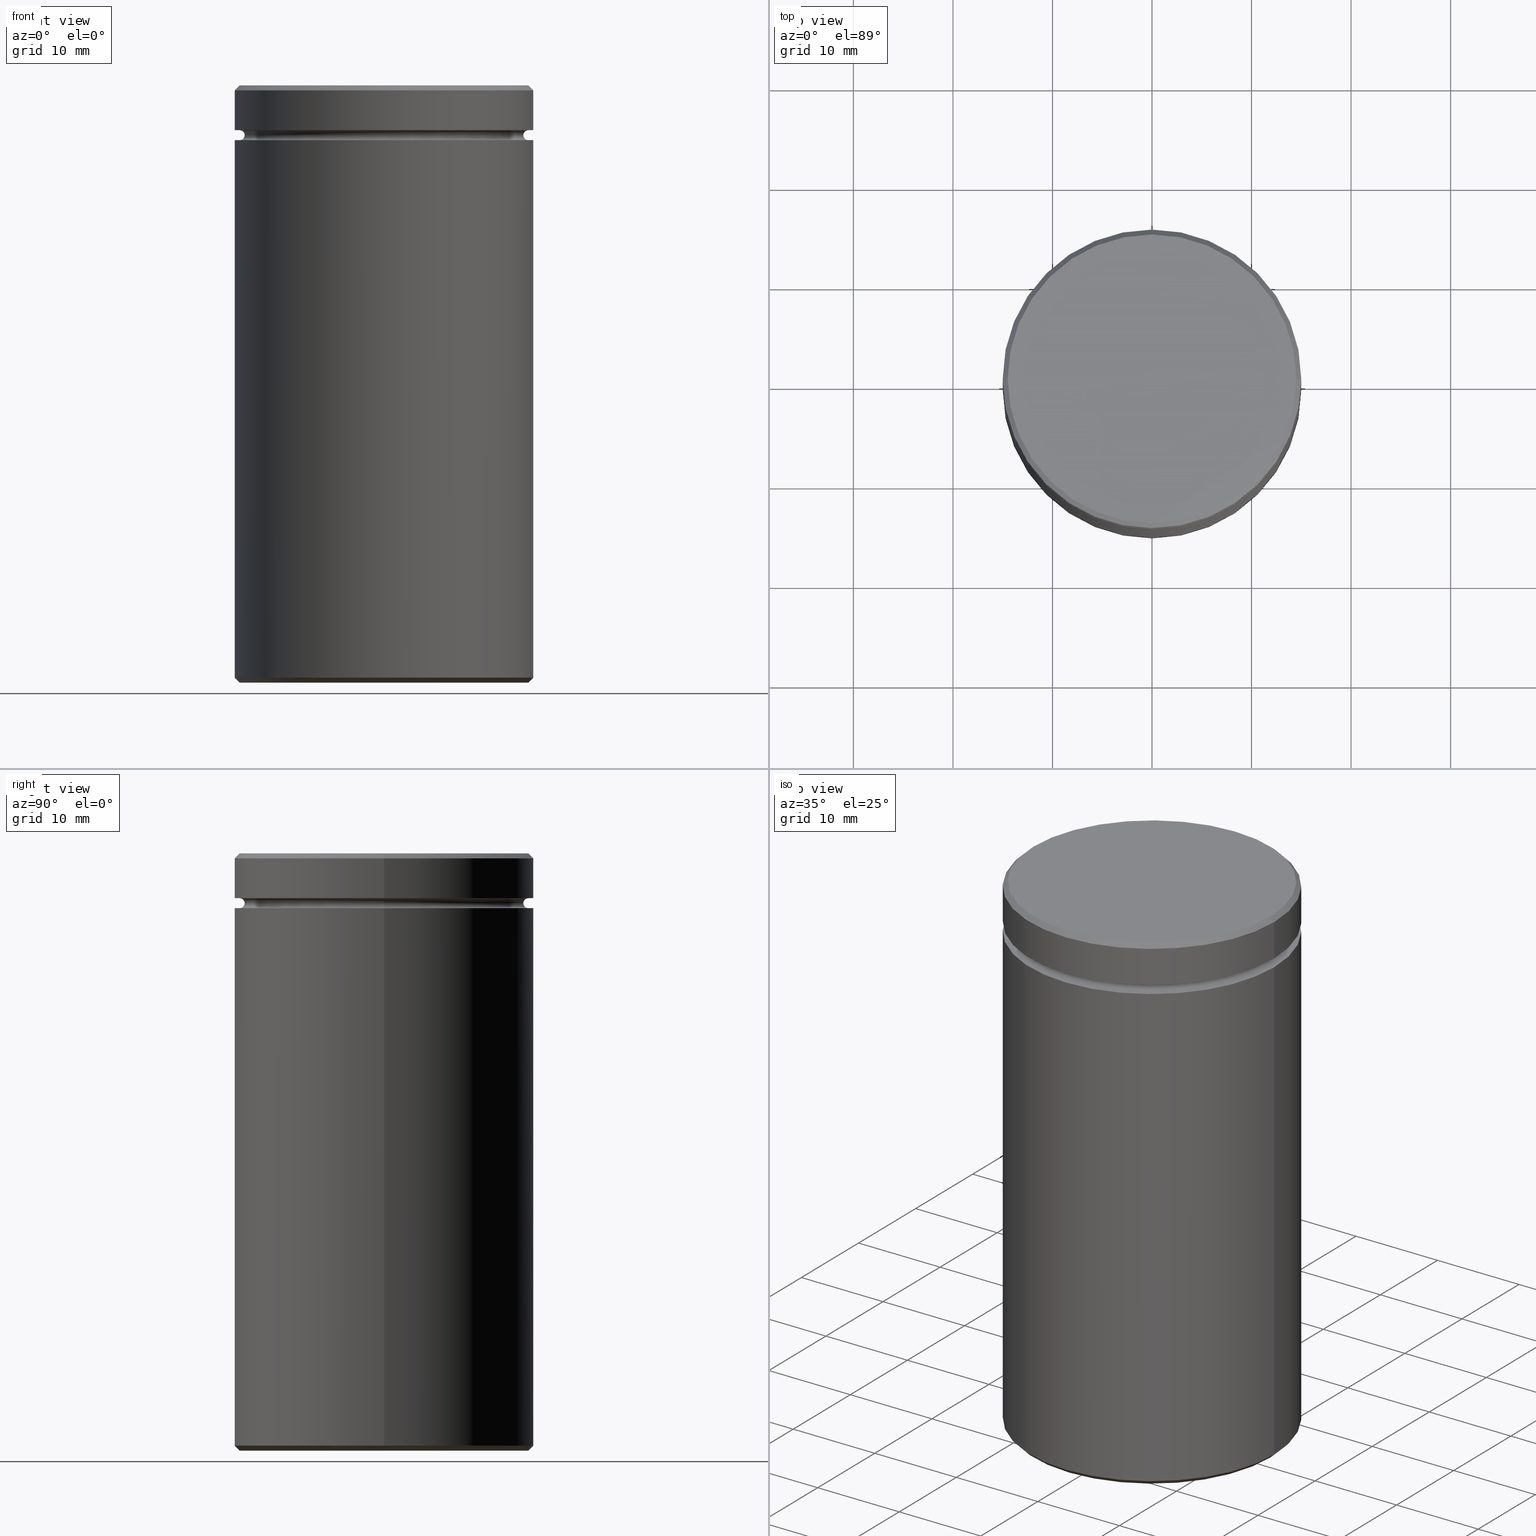
[diagram: canonical four-view strip — front | top / right | iso, engineering-drawing reading convention]
A machine part, canonical four-view strip (front | top / right | iso — engineering-drawing reading convention). The complete STEP part file that produces these views, byte-faithful:
ISO-10303-21;
HEADER;
FILE_DESCRIPTION (( 'STEP AP203' ),
    '1' );
FILE_NAME ('4a18.STEP',
    '2024-01-02T17:58:00',
    ( '' ),
    ( '' ),
    'SwSTEP 2.0',
    'SolidWorks 2019',
    '' );
FILE_SCHEMA (( 'CONFIG_CONTROL_DESIGN' ));
ENDSEC;

DATA;
#1 = DATE_AND_TIME ( #527, #15 ) ;
#2 = ORIENTED_EDGE ( 'NONE', *, *, #199, .F. ) ;
#3 = DESIGN_CONTEXT ( 'detailed design', #324, 'design' ) ;
#4 = EDGE_CURVE ( 'NONE', #536, #167, #161, .T. ) ;
#5 = ORIENTED_EDGE ( 'NONE', *, *, #19, .F. ) ;
#6 = AXIS2_PLACEMENT_3D ( 'NONE', #26, #552, #201 ) ;
#7 = CARTESIAN_POINT ( 'NONE',  ( 15.00000000000000000, 0.000000000000000000, -59.49999999999998579 ) ) ;
#8 = ORIENTED_EDGE ( 'NONE', *, *, #122, .T. ) ;
#9 = ORIENTED_EDGE ( 'NONE', *, *, #170, .F. ) ;
#10 = FACE_OUTER_BOUND ( 'NONE', #274, .T. ) ;
#11 = VERTEX_POINT ( 'NONE', #418 ) ;
#12 = CARTESIAN_POINT ( 'NONE',  ( 15.00000000000000000, 0.000000000000000000, 0.000000000000000000 ) ) ;
#13 = CARTESIAN_POINT ( 'NONE',  ( 0.000000000000000000, 0.000000000000000000, 0.000000000000000000 ) ) ;
#14 = AXIS2_PLACEMENT_3D ( 'NONE', #543, #320, #411 ) ;
#15 = LOCAL_TIME ( 18, 58, 0.000000000000000000, #471 ) ;
#16 = DIRECTION ( 'NONE',  ( -1.000000000000000000, 0.000000000000000000, 0.000000000000000000 ) ) ;
#17 = VERTEX_POINT ( 'NONE', #424 ) ;
#18 = CYLINDRICAL_SURFACE ( 'NONE', #407, 10.00000000000000000 ) ;
#19 = EDGE_CURVE ( 'NONE', #73, #292, #288, .T. ) ;
#20 = DIRECTION ( 'NONE',  ( -0.000000000000000000, -0.000000000000000000, 1.000000000000000000 ) ) ;
#21 = DIRECTION ( 'NONE',  ( -0.000000000000000000, -0.000000000000000000, 1.000000000000000000 ) ) ;
#22 = VECTOR ( 'NONE', #530, 1000.000000000000000 ) ;
#23 = AXIS2_PLACEMENT_3D ( 'NONE', #184, #266, #477 ) ;
#24 = ORGANIZATION ( 'NEUR�EN�', 'NEUR�EN�', '' ) ;
#25 = LINE ( 'NONE', #412, #228 ) ;
#26 = CARTESIAN_POINT ( 'NONE',  ( 0.000000000000000000, 0.000000000000000000, -4.999999999999999112 ) ) ;
#27 = EDGE_CURVE ( 'NONE', #469, #377, #358, .T. ) ;
#28 = CARTESIAN_POINT ( 'NONE',  ( 0.000000000000000000, 0.000000000000000000, -5.500000000000000000 ) ) ;
#29 = DIRECTION ( 'NONE',  ( -0.000000000000000000, -0.000000000000000000, -1.000000000000000000 ) ) ;
#30 = DIRECTION ( 'NONE',  ( 0.000000000000000000, 0.000000000000000000, -1.000000000000000000 ) ) ;
#31 = CIRCLE ( 'NONE', #77, 0.5000000000000004441 ) ;
#32 = ADVANCED_BREP_SHAPE_REPRESENTATION ( '4a18', ( #446, #397 ), #435 ) ;
#33 = CIRCLE ( 'NONE', #134, 10.00000000000000000 ) ;
#34 = CARTESIAN_POINT ( 'NONE',  ( 0.000000000000000000, 0.000000000000000000, -4.999999999999999112 ) ) ;
#35 = CARTESIAN_POINT ( 'NONE',  ( 0.000000000000000000, 0.000000000000000000, 0.000000000000000000 ) ) ;
#36 = PRODUCT_DEFINITION ( 'NEZN�M�', '', #387, #3 ) ;
#37 = PERSON_AND_ORGANIZATION_ROLE ( 'classification_officer' ) ;
#38 = CARTESIAN_POINT ( 'NONE',  ( -15.00000000000000000, 1.836970198721029589E-15, -0.5000000000000038858 ) ) ;
#39 = ORIENTED_EDGE ( 'NONE', *, *, #532, .T. ) ;
#40 = CARTESIAN_POINT ( 'NONE',  ( 15.00000000000000000, 0.000000000000000000, 0.000000000000000000 ) ) ;
#41 = ORIENTED_EDGE ( 'NONE', *, *, #399, .T. ) ;
#42 = AXIS2_PLACEMENT_3D ( 'NONE', #28, #559, #553 ) ;
#43 = CARTESIAN_POINT ( 'NONE',  ( -15.00000000000000000, 1.836970198721029589E-15, -59.49999999999998579 ) ) ;
#44 = APPROVAL_DATE_TIME ( #1, #185 ) ;
#45 = VERTEX_POINT ( 'NONE', #156 ) ;
#46 = CYLINDRICAL_SURFACE ( 'NONE', #340, 10.00000000000000000 ) ;
#47 = EDGE_CURVE ( 'NONE', #557, #253, #112, .T. ) ;
#48 = PERSON_AND_ORGANIZATION ( #380, #24 ) ;
#49 = DIRECTION ( 'NONE',  ( -0.000000000000000000, -0.000000000000000000, 1.000000000000000000 ) ) ;
#50 = APPROVAL ( #474, 'NEUR�EN�' ) ;
#51 = EDGE_LOOP ( 'NONE', ( #393, #8, #197, #2 ) ) ;
#52 = ORIENTED_EDGE ( 'NONE', *, *, #467, .F. ) ;
#53 = AXIS2_PLACEMENT_3D ( 'NONE', #235, #237, #410 ) ;
#54 = ADVANCED_FACE ( 'NONE', ( #251 ), #238, .T. ) ;
#55 = CARTESIAN_POINT ( 'NONE',  ( 14.50000000000000355, 1.806354028742346196E-15, 0.000000000000000000 ) ) ;
#56 = EDGE_LOOP ( 'NONE', ( #234, #314, #92, #236 ) ) ;
#57 = DIRECTION ( 'NONE',  ( -1.000000000000000000, 0.000000000000000000, 0.000000000000000000 ) ) ;
#58 = VERTEX_POINT ( 'NONE', #419 ) ;
#59 = EDGE_LOOP ( 'NONE', ( #224, #498 ) ) ;
#60 = CARTESIAN_POINT ( 'NONE',  ( 0.000000000000000000, 0.000000000000000000, -60.00000000000000000 ) ) ;
#61 = CIRCLE ( 'NONE', #518, 0.5000000000000004441 ) ;
#62 = DIRECTION ( 'NONE',  ( -1.000000000000000000, 0.000000000000000000, 0.000000000000000000 ) ) ;
#63 = ADVANCED_FACE ( 'NONE', ( #72 ), #114, .T. ) ;
#64 = DIRECTION ( 'NONE',  ( 1.000000000000000000, 0.000000000000000000, 0.000000000000000000 ) ) ;
#65 = VERTEX_POINT ( 'NONE', #517 ) ;
#66 = ORIENTED_EDGE ( 'NONE', *, *, #416, .F. ) ;
#67 = APPLICATION_PROTOCOL_DEFINITION ( 'international standard', 'config_control_design', 1994, #324 ) ;
#68 = CARTESIAN_POINT ( 'NONE',  ( 0.000000000000000000, 0.000000000000000000, -60.00000000000000000 ) ) ;
#69 = AXIS2_PLACEMENT_3D ( 'NONE', #104, #318, #356 ) ;
#70 = APPROVAL ( #457, 'NEUR�EN�' ) ;
#71 = APPROVAL_DATE_TIME ( #507, #70 ) ;
#72 = FACE_OUTER_BOUND ( 'NONE', #51, .T. ) ;
#73 = VERTEX_POINT ( 'NONE', #204 ) ;
#74 = DIRECTION ( 'NONE',  ( -0.000000000000000000, -0.000000000000000000, 1.000000000000000000 ) ) ;
#75 = DIRECTION ( 'NONE',  ( -1.000000000000000000, 0.000000000000000000, 0.000000000000000000 ) ) ;
#76 = ADVANCED_FACE ( 'NONE', ( #254 ), #458, .T. ) ;
#77 = AXIS2_PLACEMENT_3D ( 'NONE', #551, #329, #472 ) ;
#78 = VECTOR ( 'NONE', #216, 1000.000000000000000 ) ;
#79 = EDGE_LOOP ( 'NONE', ( #278, #506 ) ) ;
#80 = DATE_AND_TIME ( #567, #520 ) ;
#81 = FACE_OUTER_BOUND ( 'NONE', #56, .T. ) ;
#82 = ORIENTED_EDGE ( 'NONE', *, *, #276, .F. ) ;
#83 = DATE_AND_TIME ( #126, #325 ) ;
#84 = DIRECTION ( 'NONE',  ( 0.000000000000000000, 0.000000000000000000, -1.000000000000000000 ) ) ;
#85 = FACE_OUTER_BOUND ( 'NONE', #98, .T. ) ;
#86 = AXIS2_PLACEMENT_3D ( 'NONE', #516, #74, #171 ) ;
#87 = EDGE_CURVE ( 'NONE', #226, #557, #31, .T. ) ;
#88 = DIRECTION ( 'NONE',  ( -0.000000000000000000, -0.000000000000000000, 1.000000000000000000 ) ) ;
#89 = COORDINATED_UNIVERSAL_TIME_OFFSET ( 1, 0, .AHEAD. ) ;
#90 = VERTEX_POINT ( 'NONE', #373 ) ;
#91 = FACE_OUTER_BOUND ( 'NONE', #539, .T. ) ;
#92 = ORIENTED_EDGE ( 'NONE', *, *, #212, .T. ) ;
#93 = DIRECTION ( 'NONE',  ( 1.000000000000000000, 0.000000000000000000, 0.000000000000000000 ) ) ;
#94 = ORIENTED_EDGE ( 'NONE', *, *, #195, .F. ) ;
#95 = ADVANCED_FACE ( 'NONE', ( #376 ), #381, .T. ) ;
#96 = CIRCLE ( 'NONE', #413, 10.00000000000000000 ) ;
#97 = ORIENTED_EDGE ( 'NONE', *, *, #547, .T. ) ;
#98 = EDGE_LOOP ( 'NONE', ( #366, #425, #5, #52 ) ) ;
#99 = VECTOR ( 'NONE', #29, 1000.000000000000000 ) ;
#100 = CARTESIAN_POINT ( 'NONE',  ( 15.00000000000000000, 0.000000000000000000, -4.500000000000000888 ) ) ;
#101 = DIRECTION ( 'NONE',  ( 1.000000000000000000, 0.000000000000000000, 0.000000000000000000 ) ) ;
#102 = UNCERTAINTY_MEASURE_WITH_UNIT (LENGTH_MEASURE( 1.000000000000000082E-05 ), #154, 'distance_accuracy_value', 'NONE');
#103 = ORIENTED_EDGE ( 'NONE', *, *, #541, .F. ) ;
#104 = CARTESIAN_POINT ( 'NONE',  ( -14.49999999999999822, 1.775737858763662015E-15, -4.999999999999999112 ) ) ;
#105 = LINE ( 'NONE', #198, #151 ) ;
#106 = EDGE_CURVE ( 'NONE', #349, #58, #220, .T. ) ;
#107 = AXIS2_PLACEMENT_3D ( 'NONE', #499, #150, #488 ) ;
#108 = DIRECTION ( 'NONE',  ( 1.000000000000000000, 0.000000000000000000, 0.000000000000000000 ) ) ;
#109 = DIRECTION ( 'NONE',  ( 1.000000000000000000, 0.000000000000000000, 0.000000000000000000 ) ) ;
#110 = EDGE_CURVE ( 'NONE', #388, #226, #564, .T. ) ;
#111 = DIRECTION ( 'NONE',  ( 1.000000000000000000, 0.000000000000000000, 0.000000000000000000 ) ) ;
#112 = CIRCLE ( 'NONE', #192, 14.49999999999999822 ) ;
#113 = VECTOR ( 'NONE', #257, 1000.000000000000000 ) ;
#114 = CYLINDRICAL_SURFACE ( 'NONE', #509, 15.00000000000000000 ) ;
#115 = CC_DESIGN_PERSON_AND_ORGANIZATION_ASSIGNMENT ( #348, #223, ( #387 ) ) ;
#116 = LINE ( 'NONE', #332, #99 ) ;
#117 = CARTESIAN_POINT ( 'NONE',  ( -15.00000000000000000, 1.836970198721029589E-15, 0.000000000000000000 ) ) ;
#118 = DIRECTION ( 'NONE',  ( -0.000000000000000000, -0.000000000000000000, 1.000000000000000000 ) ) ;
#119 = DIRECTION ( 'NONE',  ( -0.000000000000000000, -0.000000000000000000, 1.000000000000000000 ) ) ;
#120 = ORIENTED_EDGE ( 'NONE', *, *, #87, .F. ) ;
#121 = ORIENTED_EDGE ( 'NONE', *, *, #170, .T. ) ;
#122 = EDGE_CURVE ( 'NONE', #45, #439, #490, .T. ) ;
#123 = DIRECTION ( 'NONE',  ( 1.000000000000000000, 0.000000000000000000, 0.000000000000000000 ) ) ;
#124 = CIRCLE ( 'NONE', #510, 15.00000000000000000 ) ;
#125 = CARTESIAN_POINT ( 'NONE',  ( -14.49999999999999822, 1.775737858763662015E-15, -5.500000000000000000 ) ) ;
#126 = CALENDAR_DATE ( 2024, 2, 1 ) ;
#127 = FACE_BOUND ( 'NONE', #183, .T. ) ;
#128 = ORIENTED_EDGE ( 'NONE', *, *, #372, .T. ) ;
#129 = ADVANCED_FACE ( 'NONE', ( #250 ), #302, .T. ) ;
#130 = PERSON_AND_ORGANIZATION_ROLE ( 'creator' ) ;
#131 = ORIENTED_EDGE ( 'NONE', *, *, #562, .F. ) ;
#132 = CARTESIAN_POINT ( 'NONE',  ( -15.00000000000000000, 1.836970198721029589E-15, -5.500000000000000000 ) ) ;
#133 = ORIENTED_EDGE ( 'NONE', *, *, #515, .T. ) ;
#134 = AXIS2_PLACEMENT_3D ( 'NONE', #60, #442, #321 ) ;
#135 = DIRECTION ( 'NONE',  ( -1.000000000000000000, -1.224646799147353454E-16, 0.000000000000000000 ) ) ;
#136 = EDGE_LOOP ( 'NONE', ( #369, #128, #546, #120 ) ) ;
#137 = CARTESIAN_POINT ( 'NONE',  ( 0.000000000000000000, 15.00000000000000000, -60.00000000000000000 ) ) ;
#138 = EDGE_CURVE ( 'NONE', #167, #544, #341, .T. ) ;
#139 = ORIENTED_EDGE ( 'NONE', *, *, #556, .F. ) ;
#140 = DIRECTION ( 'NONE',  ( 0.000000000000000000, 0.000000000000000000, -1.000000000000000000 ) ) ;
#141 = AXIS2_PLACEMENT_3D ( 'NONE', #365, #493, #101 ) ;
#142 = DIRECTION ( 'NONE',  ( -0.000000000000000000, -0.000000000000000000, -1.000000000000000000 ) ) ;
#143 = ORIENTED_EDGE ( 'NONE', *, *, #416, .T. ) ;
#144 = EDGE_LOOP ( 'NONE', ( #398, #206, #568, #270 ) ) ;
#145 = CARTESIAN_POINT ( 'NONE',  ( 0.000000000000000000, 0.000000000000000000, -4.500000000000000888 ) ) ;
#146 = EDGE_CURVE ( 'NONE', #45, #292, #25, .T. ) ;
#147 = ORIENTED_EDGE ( 'NONE', *, *, #532, .F. ) ;
#148 = CARTESIAN_POINT ( 'NONE',  ( 0.000000000000000000, 0.000000000000000000, -60.00000000000000000 ) ) ;
#149 = PRODUCT_RELATED_PRODUCT_CATEGORY ( 'detail', '', ( #299 ) ) ;
#150 = DIRECTION ( 'NONE',  ( 0.000000000000000000, 0.000000000000000000, -1.000000000000000000 ) ) ;
#151 = VECTOR ( 'NONE', #535, 1000.000000000000000 ) ;
#152 = LOCAL_TIME ( 18, 58, 0.000000000000000000, #371 ) ;
#153 = ORIENTED_EDGE ( 'NONE', *, *, #199, .T. ) ;
#154 =( LENGTH_UNIT ( ) NAMED_UNIT ( * ) SI_UNIT ( .MILLI., .METRE. ) );
#155 = ADVANCED_FACE ( 'NONE', ( #207 ), #465, .T. ) ;
#156 = CARTESIAN_POINT ( 'NONE',  ( -15.00000000000000000, 1.836970198721029589E-15, -59.49999999999998579 ) ) ;
#157 = VERTEX_POINT ( 'NONE', #327 ) ;
#158 = DIRECTION ( 'NONE',  ( 0.7071067811865414665, 8.659560562354858902E-17, -0.7071067811865536790 ) ) ;
#159 = DIRECTION ( 'NONE',  ( 0.000000000000000000, 0.000000000000000000, -1.000000000000000000 ) ) ;
#160 = DIRECTION ( 'NONE',  ( -0.000000000000000000, -0.000000000000000000, 1.000000000000000000 ) ) ;
#161 = LINE ( 'NONE', #117, #459 ) ;
#162 = ORIENTED_EDGE ( 'NONE', *, *, #562, .T. ) ;
#163 = AXIS2_PLACEMENT_3D ( 'NONE', #68, #30, #75 ) ;
#164 = DIRECTION ( 'NONE',  ( 1.000000000000000000, 0.000000000000000000, 0.000000000000000000 ) ) ;
#165 = VECTOR ( 'NONE', #191, 1000.000000000000000 ) ;
#166 = DIRECTION ( 'NONE',  ( -0.000000000000000000, -0.000000000000000000, 1.000000000000000000 ) ) ;
#167 = VERTEX_POINT ( 'NONE', #38 ) ;
#168 = CARTESIAN_POINT ( 'NONE',  ( 0.000000000000000000, 0.000000000000000000, -4.999999999999999112 ) ) ;
#169 = EDGE_LOOP ( 'NONE', ( #374, #545, #343, #186 ) ) ;
#170 = EDGE_CURVE ( 'NONE', #157, #45, #175, .T. ) ;
#171 = DIRECTION ( 'NONE',  ( 1.000000000000000000, 0.000000000000000000, 0.000000000000000000 ) ) ;
#172 = PERSON_AND_ORGANIZATION ( #380, #24 ) ;
#173 = CC_DESIGN_PERSON_AND_ORGANIZATION_ASSIGNMENT ( #339, #37, ( #485 ) ) ;
#174 = ORIENTED_EDGE ( 'NONE', *, *, #326, .F. ) ;
#175 = LINE ( 'NONE', #43, #22 ) ;
#176 = EDGE_LOOP ( 'NONE', ( #489, #153 ) ) ;
#177 = AXIS2_PLACEMENT_3D ( 'NONE', #34, #249, #111 ) ;
#178 = CC_DESIGN_APPROVAL ( #50, ( #485 ) ) ;
#179 = APPROVAL_PERSON_ORGANIZATION ( #256, #50, #215 ) ;
#180 = DIRECTION ( 'NONE',  ( -1.000000000000000000, 0.000000000000000000, -0.000000000000000000 ) ) ;
#181 = ADVANCED_FACE ( 'NONE', ( #81 ), #46, .F. ) ;
#182 = COORDINATED_UNIVERSAL_TIME_OFFSET ( 1, 0, .AHEAD. ) ;
#183 = EDGE_LOOP ( 'NONE', ( #494, #258 ) ) ;
#184 = CARTESIAN_POINT ( 'NONE',  ( 0.000000000000000000, 0.000000000000000000, -5.500000000000000000 ) ) ;
#185 = APPROVAL ( #523, 'NEUR�EN�' ) ;
#186 = ORIENTED_EDGE ( 'NONE', *, *, #522, .F. ) ;
#187 = CARTESIAN_POINT ( 'NONE',  ( 0.000000000000000000, 0.000000000000000000, -60.00000000000000000 ) ) ;
#188 = TOROIDAL_SURFACE ( 'NONE', #177, 14.49999999999999822, 0.5000000000000000000 ) ;
#189 = FACE_OUTER_BOUND ( 'NONE', #59, .T. ) ;
#190 = CARTESIAN_POINT ( 'NONE',  ( -10.00000000000000000, 0.000000000000000000, -60.00000000000000000 ) ) ;
#191 = DIRECTION ( 'NONE',  ( -0.000000000000000000, -0.000000000000000000, 1.000000000000000000 ) ) ;
#192 = AXIS2_PLACEMENT_3D ( 'NONE', #383, #303, #508 ) ;
#193 = CONICAL_SURFACE ( 'NONE', #310, 15.00000000000000000, 0.7853981633974361776 ) ;
#194 = DIRECTION ( 'NONE',  ( 0.000000000000000000, 0.000000000000000000, -1.000000000000000000 ) ) ;
#195 = EDGE_CURVE ( 'NONE', #11, #441, #96, .T. ) ;
#196 = PLANE ( 'NONE',  #433 ) ;
#197 = ORIENTED_EDGE ( 'NONE', *, *, #467, .T. ) ;
#198 = CARTESIAN_POINT ( 'NONE',  ( -14.50000000000000355, 0.000000000000000000, 0.000000000000000000 ) ) ;
#199 = EDGE_CURVE ( 'NONE', #292, #73, #316, .T. ) ;
#200 = AXIS2_PLACEMENT_3D ( 'NONE', #333, #159, #203 ) ;
#201 = DIRECTION ( 'NONE',  ( 1.000000000000000000, 0.000000000000000000, 0.000000000000000000 ) ) ;
#202 = AXIS2_PLACEMENT_3D ( 'NONE', #307, #344, #346 ) ;
#203 = DIRECTION ( 'NONE',  ( -1.000000000000000000, 0.000000000000000000, -0.000000000000000000 ) ) ;
#204 = CARTESIAN_POINT ( 'NONE',  ( 15.00000000000000000, 0.000000000000000000, -5.500000000000000000 ) ) ;
#205 = DIRECTION ( 'NONE',  ( -1.000000000000000000, 0.000000000000000000, 0.000000000000000000 ) ) ;
#206 = ORIENTED_EDGE ( 'NONE', *, *, #515, .F. ) ;
#207 = FACE_OUTER_BOUND ( 'NONE', #402, .T. ) ;
#208 = AXIS2_PLACEMENT_3D ( 'NONE', #35, #561, #370 ) ;
#209 = CARTESIAN_POINT ( 'NONE',  ( 0.000000000000000000, 0.000000000000000000, 0.000000000000000000 ) ) ;
#210 = TOROIDAL_SURFACE ( 'NONE', #230, 14.49999999999999822, 0.5000000000000000000 ) ;
#211 = CC_DESIGN_APPROVAL ( #185, ( #387 ) ) ;
#212 = EDGE_CURVE ( 'NONE', #441, #349, #521, .T. ) ;
#213 = CARTESIAN_POINT ( 'NONE',  ( -15.00000000000000000, 1.836970198721029589E-15, -4.500000000000000888 ) ) ;
#214 = DIRECTION ( 'NONE',  ( 1.000000000000000000, 0.000000000000000000, 0.000000000000000000 ) ) ;
#215 = APPROVAL_ROLE ( '' ) ;
#216 = DIRECTION ( 'NONE',  ( 0.7071067811865389130, 0.000000000000000000, 0.7071067811865561215 ) ) ;
#217 = ORIENTED_EDGE ( 'NONE', *, *, #522, .T. ) ;
#218 = EDGE_CURVE ( 'NONE', #226, #17, #61, .T. ) ;
#219 = FACE_OUTER_BOUND ( 'NONE', #176, .T. ) ;
#220 = CIRCLE ( 'NONE', #163, 10.00000000000000000 ) ;
#221 = TOROIDAL_SURFACE ( 'NONE', #107, 14.49999999999999822, 0.5000000000000000000 ) ;
#222 = DIRECTION ( 'NONE',  ( -0.000000000000000000, -0.000000000000000000, -1.000000000000000000 ) ) ;
#223 = PERSON_AND_ORGANIZATION_ROLE ( 'creator' ) ;
#224 = ORIENTED_EDGE ( 'NONE', *, *, #326, .T. ) ;
#225 = DIRECTION ( 'NONE',  ( 0.000000000000000000, 0.000000000000000000, -1.000000000000000000 ) ) ;
#226 = VERTEX_POINT ( 'NONE', #384 ) ;
#227 = DIRECTION ( 'NONE',  ( 1.000000000000000000, 0.000000000000000000, 0.000000000000000000 ) ) ;
#228 = VECTOR ( 'NONE', #21, 1000.000000000000000 ) ;
#229 = EDGE_CURVE ( 'NONE', #90, #439, #389, .T. ) ;
#230 = AXIS2_PLACEMENT_3D ( 'NONE', #313, #353, #445 ) ;
#231 = ORIENTED_EDGE ( 'NONE', *, *, #195, .T. ) ;
#232 = CARTESIAN_POINT ( 'NONE',  ( 0.000000000000000000, 15.00000000000000000, -4.500000000000000888 ) ) ;
#233 = ORIENTED_EDGE ( 'NONE', *, *, #27, .F. ) ;
#234 = ORIENTED_EDGE ( 'NONE', *, *, #547, .F. ) ;
#235 = CARTESIAN_POINT ( 'NONE',  ( 0.000000000000000000, 0.000000000000000000, -59.49999999999998579 ) ) ;
#236 = ORIENTED_EDGE ( 'NONE', *, *, #106, .T. ) ;
#237 = DIRECTION ( 'NONE',  ( -0.000000000000000000, -0.000000000000000000, 1.000000000000000000 ) ) ;
#238 = CONICAL_SURFACE ( 'NONE', #263, 14.50000000000000355, 0.7853981633974396193 ) ;
#239 = AXIS2_PLACEMENT_3D ( 'NONE', #554, #160, #64 ) ;
#240 = CARTESIAN_POINT ( 'NONE',  ( 15.00000000000000000, 0.000000000000000000, -59.49999999999998579 ) ) ;
#241 = EDGE_LOOP ( 'NONE', ( #41, #280 ) ) ;
#242 = FACE_OUTER_BOUND ( 'NONE', #405, .T. ) ;
#243 = ADVANCED_FACE ( 'NONE', ( #189, #127 ), #312, .T. ) ;
#244 = PERSON_AND_ORGANIZATION ( #380, #24 ) ;
#245 = DIRECTION ( 'NONE',  ( -0.000000000000000000, -0.000000000000000000, 1.000000000000000000 ) ) ;
#246 = AXIS2_PLACEMENT_3D ( 'NONE', #491, #275, #16 ) ;
#247 = CARTESIAN_POINT ( 'NONE',  ( 0.000000000000000000, 0.000000000000000000, -59.49999999999998579 ) ) ;
#248 = ORIENTED_EDGE ( 'NONE', *, *, #138, .F. ) ;
#249 = DIRECTION ( 'NONE',  ( -0.000000000000000000, -0.000000000000000000, 1.000000000000000000 ) ) ;
#250 = FACE_OUTER_BOUND ( 'NONE', #503, .T. ) ;
#251 = FACE_OUTER_BOUND ( 'NONE', #404, .T. ) ;
#252 = CARTESIAN_POINT ( 'NONE',  ( 0.000000000000000000, 0.000000000000000000, -4.500000000000000888 ) ) ;
#253 = VERTEX_POINT ( 'NONE', #125 ) ;
#254 = FACE_OUTER_BOUND ( 'NONE', #444, .T. ) ;
#255 = AXIS2_PLACEMENT_3D ( 'NONE', #13, #194, #205 ) ;
#256 = PERSON_AND_ORGANIZATION ( #380, #24 ) ;
#257 = DIRECTION ( 'NONE',  ( -0.000000000000000000, -0.000000000000000000, -1.000000000000000000 ) ) ;
#258 = ORIENTED_EDGE ( 'NONE', *, *, #432, .F. ) ;
#259 = EDGE_CURVE ( 'NONE', #253, #557, #273, .T. ) ;
#260 = SHAPE_DEFINITION_REPRESENTATION ( #483, #32 ) ;
#261 = CARTESIAN_POINT ( 'NONE',  ( 0.000000000000000000, 0.000000000000000000, -4.999999999999999112 ) ) ;
#262 = CARTESIAN_POINT ( 'NONE',  ( 0.000000000000000000, 0.000000000000000000, 0.000000000000000000 ) ) ;
#263 = AXIS2_PLACEMENT_3D ( 'NONE', #420, #338, #505 ) ;
#264 = CIRCLE ( 'NONE', #396, 14.49999999999999645 ) ;
#265 = CALENDAR_DATE ( 2024, 2, 1 ) ;
#266 = DIRECTION ( 'NONE',  ( 0.000000000000000000, 0.000000000000000000, -1.000000000000000000 ) ) ;
#267 = EDGE_LOOP ( 'NONE', ( #463, #39 ) ) ;
#268 = CARTESIAN_POINT ( 'NONE',  ( 0.000000000000000000, 0.000000000000000000, -18.99999999999999645 ) ) ;
#269 = ADVANCED_FACE ( 'NONE', ( #85 ), #563, .T. ) ;
#270 = ORIENTED_EDGE ( 'NONE', *, *, #259, .F. ) ;
#271 = DIRECTION ( 'NONE',  ( 0.000000000000000000, 0.000000000000000000, -1.000000000000000000 ) ) ;
#272 = CC_DESIGN_DATE_AND_TIME_ASSIGNMENT ( #301, #306, ( #36 ) ) ;
#273 = CIRCLE ( 'NONE', #23, 14.49999999999999822 ) ;
#274 = EDGE_LOOP ( 'NONE', ( #94, #97, #501, #511 ) ) ;
#275 = DIRECTION ( 'NONE',  ( 0.000000000000000000, 0.000000000000000000, -1.000000000000000000 ) ) ;
#276 = EDGE_CURVE ( 'NONE', #363, #544, #487, .T. ) ;
#277 = CARTESIAN_POINT ( 'NONE',  ( -14.50000000000000355, 0.000000000000000000, 0.000000000000000000 ) ) ;
#278 = ORIENTED_EDGE ( 'NONE', *, *, #47, .T. ) ;
#279 = DIRECTION ( 'NONE',  ( -0.000000000000000000, -0.000000000000000000, 1.000000000000000000 ) ) ;
#280 = ORIENTED_EDGE ( 'NONE', *, *, #556, .T. ) ;
#281 = AXIS2_PLACEMENT_3D ( 'NONE', #148, #140, #62 ) ;
#282 = DIRECTION ( 'NONE',  ( 0.000000000000000000, 0.000000000000000000, -1.000000000000000000 ) ) ;
#283 = ORIENTED_EDGE ( 'NONE', *, *, #456, .T. ) ;
#284 = PERSON_AND_ORGANIZATION ( #380, #24 ) ;
#285 = DIRECTION ( 'NONE',  ( 0.000000000000000000, 0.000000000000000000, 1.000000000000000000 ) ) ;
#286 = ORIENTED_EDGE ( 'NONE', *, *, #330, .F. ) ;
#287 = DIRECTION ( 'NONE',  ( -0.000000000000000000, -0.000000000000000000, 1.000000000000000000 ) ) ;
#288 = CIRCLE ( 'NONE', #42, 15.00000000000000000 ) ;
#289 = AXIS2_PLACEMENT_3D ( 'NONE', #261, #88, #308 ) ;
#290 = LINE ( 'NONE', #504, #549 ) ;
#291 = CARTESIAN_POINT ( 'NONE',  ( 0.000000000000000000, 0.000000000000000000, -59.49999999999998579 ) ) ;
#292 = VERTEX_POINT ( 'NONE', #132 ) ;
#293 = ADVANCED_FACE ( 'NONE', ( #309 ), #450, .F. ) ;
#294 = CARTESIAN_POINT ( 'NONE',  ( 14.49999999999999822, 0.000000000000000000, -5.500000000000000000 ) ) ;
#295 = DIRECTION ( 'NONE',  ( -0.000000000000000000, -0.000000000000000000, 1.000000000000000000 ) ) ;
#296 = APPLICATION_PROTOCOL_DEFINITION ( 'international standard', 'config_control_design', 1994, #300 ) ;
#297 = CC_DESIGN_PERSON_AND_ORGANIZATION_ASSIGNMENT ( #336, #486, ( #387 ) ) ;
#298 = DIRECTION ( 'NONE',  ( 0.000000000000000000, 0.000000000000000000, -1.000000000000000000 ) ) ;
#299 = PRODUCT ( '4a18', '4a18', '', ( #466 ) ) ;
#300 = APPLICATION_CONTEXT ( 'configuration controlled 3d designs of mechanical parts and assemblies' ) ;
#301 = DATE_AND_TIME ( #265, #408 ) ;
#302 = CONICAL_SURFACE ( 'NONE', #359, 15.00000000000000000, 0.7853981633974361776 ) ;
#303 = DIRECTION ( 'NONE',  ( 0.000000000000000000, 0.000000000000000000, -1.000000000000000000 ) ) ;
#304 = VECTOR ( 'NONE', #475, 1000.000000000000000 ) ;
#305 = ADVANCED_FACE ( 'NONE', ( #438, #219 ), #430, .T. ) ;
#306 = DATE_TIME_ROLE ( 'creation_date' ) ;
#307 = CARTESIAN_POINT ( 'NONE',  ( 0.000000000000000000, 0.000000000000000000, 0.000000000000000000 ) ) ;
#308 = DIRECTION ( 'NONE',  ( 1.000000000000000000, 0.000000000000000000, 0.000000000000000000 ) ) ;
#309 = FACE_OUTER_BOUND ( 'NONE', #136, .T. ) ;
#310 = AXIS2_PLACEMENT_3D ( 'NONE', #542, #279, #93 ) ;
#311 = ADVANCED_FACE ( 'NONE', ( #91 ), #533, .T. ) ;
#312 = PLANE ( 'NONE',  #460 ) ;
#313 = CARTESIAN_POINT ( 'NONE',  ( 0.000000000000000000, 0.000000000000000000, -5.000000000000000888 ) ) ;
#314 = ORIENTED_EDGE ( 'NONE', *, *, #456, .F. ) ;
#315 = DIRECTION ( 'NONE',  ( -1.000000000000000000, 0.000000000000000000, 0.000000000000000000 ) ) ;
#316 = CIRCLE ( 'NONE', #537, 15.00000000000000000 ) ;
#317 = ADVANCED_FACE ( 'NONE', ( #434 ), #210, .F. ) ;
#318 = DIRECTION ( 'NONE',  ( 1.224646799147353207E-16, 1.000000000000000000, 0.000000000000000000 ) ) ;
#319 = ORIENTED_EDGE ( 'NONE', *, *, #440, .F. ) ;
#320 = DIRECTION ( 'NONE',  ( -0.000000000000000000, -0.000000000000000000, 1.000000000000000000 ) ) ;
#321 = DIRECTION ( 'NONE',  ( -1.000000000000000000, 0.000000000000000000, 0.000000000000000000 ) ) ;
#322 = AXIS2_PLACEMENT_3D ( 'NONE', #209, #287, #123 ) ;
#323 = CIRCLE ( 'NONE', #470, 0.5000000000000004441 ) ;
#324 = APPLICATION_CONTEXT ( 'configuration controlled 3d designs of mechanical parts and assemblies' ) ;
#325 = LOCAL_TIME ( 18, 58, 0.000000000000000000, #182 ) ;
#326 = EDGE_CURVE ( 'NONE', #90, #157, #264, .T. ) ;
#327 = CARTESIAN_POINT ( 'NONE',  ( -14.49999999999999645, 1.806354028742345802E-15, -60.00000000000000000 ) ) ;
#328 = CALENDAR_DATE ( 2024, 2, 1 ) ;
#329 = DIRECTION ( 'NONE',  ( 0.000000000000000000, -1.000000000000000000, 0.000000000000000000 ) ) ;
#330 = EDGE_CURVE ( 'NONE', #439, #45, #414, .T. ) ;
#331 = CIRCLE ( 'NONE', #246, 10.00000000000000000 ) ;
#332 = CARTESIAN_POINT ( 'NONE',  ( 10.00000000000000000, 1.224646799147353256E-15, -18.99999999999999645 ) ) ;
#333 = CARTESIAN_POINT ( 'NONE',  ( 0.000000000000000000, 0.000000000000000000, -18.99999999999999645 ) ) ;
#334 = CARTESIAN_POINT ( 'NONE',  ( 0.000000000000000000, 0.000000000000000000, 0.000000000000000000 ) ) ;
#335 = DIRECTION ( 'NONE',  ( 1.000000000000000000, 0.000000000000000000, 0.000000000000000000 ) ) ;
#336 = PERSON_AND_ORGANIZATION ( #380, #24 ) ;
#337 = CC_DESIGN_PERSON_AND_ORGANIZATION_ASSIGNMENT ( #284, #454, ( #299 ) ) ;
#338 = DIRECTION ( 'NONE',  ( 0.000000000000000000, 0.000000000000000000, -1.000000000000000000 ) ) ;
#339 = PERSON_AND_ORGANIZATION ( #380, #24 ) ;
#340 = AXIS2_PLACEMENT_3D ( 'NONE', #569, #222, #524 ) ;
#341 = CIRCLE ( 'NONE', #528, 15.00000000000000000 ) ;
#342 = DIRECTION ( 'NONE',  ( -0.000000000000000000, -0.000000000000000000, 1.000000000000000000 ) ) ;
#343 = ORIENTED_EDGE ( 'NONE', *, *, #399, .F. ) ;
#344 = DIRECTION ( 'NONE',  ( -0.000000000000000000, -0.000000000000000000, 1.000000000000000000 ) ) ;
#345 = EDGE_LOOP ( 'NONE', ( #103, #233, #480, #319 ) ) ;
#346 = DIRECTION ( 'NONE',  ( 1.000000000000000000, 0.000000000000000000, 0.000000000000000000 ) ) ;
#347 = EDGE_CURVE ( 'NONE', #469, #167, #105, .T. ) ;
#348 = PERSON_AND_ORGANIZATION ( #380, #24 ) ;
#349 = VERTEX_POINT ( 'NONE', #190 ) ;
#350 = CARTESIAN_POINT ( 'NONE',  ( 0.000000000000000000, 13.99999999999999822, -5.500000000000000000 ) ) ;
#351 = CIRCLE ( 'NONE', #141, 15.00000000000000000 ) ;
#352 = DIRECTION ( 'NONE',  ( -1.224646799147353207E-16, 1.000000000000000000, 0.000000000000000000 ) ) ;
#353 = DIRECTION ( 'NONE',  ( 0.000000000000000000, 0.000000000000000000, -1.000000000000000000 ) ) ;
#354 = ADVANCED_FACE ( 'NONE', ( #406, #448 ), #196, .T. ) ;
#355 = ORIENTED_EDGE ( 'NONE', *, *, #138, .T. ) ;
#356 = DIRECTION ( 'NONE',  ( -1.000000000000000000, 1.224646799147349509E-16, 0.000000000000000000 ) ) ;
#357 = CC_DESIGN_DATE_AND_TIME_ASSIGNMENT ( #80, #427, ( #485 ) ) ;
#358 = CIRCLE ( 'NONE', #86, 14.50000000000000355 ) ;
#359 = AXIS2_PLACEMENT_3D ( 'NONE', #247, #245, #214 ) ;
#360 = FACE_OUTER_BOUND ( 'NONE', #525, .T. ) ;
#361 = ORIENTED_EDGE ( 'NONE', *, *, #229, .F. ) ;
#362 = DIRECTION ( 'NONE',  ( -1.000000000000000000, 0.000000000000000000, -0.000000000000000000 ) ) ;
#363 = VERTEX_POINT ( 'NONE', #100 ) ;
#364 = ADVANCED_FACE ( 'NONE', ( #242 ), #193, .T. ) ;
#365 = CARTESIAN_POINT ( 'NONE',  ( 0.000000000000000000, 0.000000000000000000, -0.5000000000000038858 ) ) ;
#366 = ORIENTED_EDGE ( 'NONE', *, *, #330, .T. ) ;
#367 = AXIS2_PLACEMENT_3D ( 'NONE', #350, #391, #386 ) ;
#368 = DIRECTION ( 'NONE',  ( 0.000000000000000000, 0.000000000000000000, -1.000000000000000000 ) ) ;
#369 = ORIENTED_EDGE ( 'NONE', *, *, #110, .F. ) ;
#370 = DIRECTION ( 'NONE',  ( 1.000000000000000000, 0.000000000000000000, 0.000000000000000000 ) ) ;
#371 = COORDINATED_UNIVERSAL_TIME_OFFSET ( 1, 0, .AHEAD. ) ;
#372 = EDGE_CURVE ( 'NONE', #388, #253, #378, .T. ) ;
#373 = CARTESIAN_POINT ( 'NONE',  ( 14.49999999999999645, 0.000000000000000000, -60.00000000000000000 ) ) ;
#374 = ORIENTED_EDGE ( 'NONE', *, *, #110, .T. ) ;
#375 = CARTESIAN_POINT ( 'NONE',  ( 0.000000000000000000, 0.000000000000000000, -4.500000000000000888 ) ) ;
#376 = FACE_OUTER_BOUND ( 'NONE', #267, .T. ) ;
#377 = VERTEX_POINT ( 'NONE', #55 ) ;
#378 = CIRCLE ( 'NONE', #69, 0.5000000000000004441 ) ;
#379 = FACE_OUTER_BOUND ( 'NONE', #144, .T. ) ;
#380 = PERSON ( 'NEUR�EN�', 'NEUR�EN�', 'NEUR�EN�', ('NEUR�EN�'), ('NEUR�EN�'), ('NEUR�EN�') ) ;
#381 = PLANE ( 'NONE',  #208 ) ;
#382 =( NAMED_UNIT ( * ) PLANE_ANGLE_UNIT ( ) SI_UNIT ( $, .RADIAN. ) );
#383 = CARTESIAN_POINT ( 'NONE',  ( 0.000000000000000000, 0.000000000000000000, -5.500000000000000000 ) ) ;
#384 = CARTESIAN_POINT ( 'NONE',  ( 13.99999999999999822, 0.000000000000000000, -4.999999999999999112 ) ) ;
#385 = CIRCLE ( 'NONE', #14, 14.49999999999999822 ) ;
#386 = DIRECTION ( 'NONE',  ( 1.000000000000000000, 0.000000000000000000, 0.000000000000000000 ) ) ;
#387 = PRODUCT_DEFINITION_FORMATION_WITH_SPECIFIED_SOURCE ( 'LIBOVOLN�', '', #299, .NOT_KNOWN. ) ;
#388 = VERTEX_POINT ( 'NONE', #452 ) ;
#389 = LINE ( 'NONE', #7, #78 ) ;
#390 = EDGE_CURVE ( 'NONE', #157, #90, #529, .T. ) ;
#391 = DIRECTION ( 'NONE',  ( 0.000000000000000000, -0.000000000000000000, 1.000000000000000000 ) ) ;
#392 = SECURITY_CLASSIFICATION_LEVEL ( 'unclassified' ) ;
#393 = ORIENTED_EDGE ( 'NONE', *, *, #146, .F. ) ;
#394 = DIRECTION ( 'NONE',  ( -1.000000000000000000, 0.000000000000000000, 0.000000000000000000 ) ) ;
#395 = AXIS2_PLACEMENT_3D ( 'NONE', #168, #119, #335 ) ;
#396 = AXIS2_PLACEMENT_3D ( 'NONE', #187, #271, #57 ) ;
#397 = AXIS2_PLACEMENT_3D ( 'NONE', #334, #285, #108 ) ;
#398 = ORIENTED_EDGE ( 'NONE', *, *, #372, .F. ) ;
#399 = EDGE_CURVE ( 'NONE', #65, #17, #385, .T. ) ;
#400 = ORIENTED_EDGE ( 'NONE', *, *, #390, .F. ) ;
#401 = DIRECTION ( 'NONE',  ( 1.000000000000000000, 0.000000000000000000, 0.000000000000000000 ) ) ;
#402 = EDGE_LOOP ( 'NONE', ( #283, #231 ) ) ;
#403 = LINE ( 'NONE', #12, #165 ) ;
#404 = EDGE_LOOP ( 'NONE', ( #147, #421, #248, #455 ) ) ;
#405 = EDGE_LOOP ( 'NONE', ( #400, #121, #286, #361 ) ) ;
#406 = FACE_BOUND ( 'NONE', #241, .T. ) ;
#407 = AXIS2_PLACEMENT_3D ( 'NONE', #538, #142, #315 ) ;
#408 = LOCAL_TIME ( 18, 58, 0.000000000000000000, #89 ) ;
#409 = ORIENTED_EDGE ( 'NONE', *, *, #218, .F. ) ;
#410 = DIRECTION ( 'NONE',  ( -1.000000000000000000, 0.000000000000000000, 0.000000000000000000 ) ) ;
#411 = DIRECTION ( 'NONE',  ( -1.000000000000000000, 0.000000000000000000, 0.000000000000000000 ) ) ;
#412 = CARTESIAN_POINT ( 'NONE',  ( -15.00000000000000000, 1.836970198721029589E-15, 0.000000000000000000 ) ) ;
#413 = AXIS2_PLACEMENT_3D ( 'NONE', #268, #84, #394 ) ;
#414 = CIRCLE ( 'NONE', #53, 15.00000000000000000 ) ;
#415 = CIRCLE ( 'NONE', #540, 14.49999999999999822 ) ;
#416 = EDGE_CURVE ( 'NONE', #536, #363, #124, .T. ) ;
#417 = APPROVAL_ROLE ( '' ) ;
#418 = CARTESIAN_POINT ( 'NONE',  ( 10.00000000000000000, 1.224646799147353256E-15, -18.99999999999999645 ) ) ;
#419 = CARTESIAN_POINT ( 'NONE',  ( 10.00000000000000000, 1.224646799147353256E-15, -60.00000000000000000 ) ) ;
#420 = CARTESIAN_POINT ( 'NONE',  ( 0.000000000000000000, 0.000000000000000000, 0.000000000000000000 ) ) ;
#421 = ORIENTED_EDGE ( 'NONE', *, *, #541, .T. ) ;
#422 = AXIS2_PLACEMENT_3D ( 'NONE', #262, #49, #227 ) ;
#423 = DIRECTION ( 'NONE',  ( -1.000000000000000000, 0.000000000000000000, 0.000000000000000000 ) ) ;
#424 = CARTESIAN_POINT ( 'NONE',  ( 14.49999999999999822, 1.775737858763662015E-15, -4.500000000000000888 ) ) ;
#425 = ORIENTED_EDGE ( 'NONE', *, *, #146, .T. ) ;
#426 = ADVANCED_FACE ( 'NONE', ( #10 ), #18, .F. ) ;
#427 = DATE_TIME_ROLE ( 'classification_date' ) ;
#428 = CARTESIAN_POINT ( 'NONE',  ( 14.49999999999999822, 1.775737858763662015E-15, -5.000000000000000888 ) ) ;
#429 = COORDINATED_UNIVERSAL_TIME_OFFSET ( 1, 0, .AHEAD. ) ;
#430 = PLANE ( 'NONE',  #367 ) ;
#431 = ORIENTED_EDGE ( 'NONE', *, *, #4, .F. ) ;
#432 = EDGE_CURVE ( 'NONE', #58, #349, #33, .T. ) ;
#433 = AXIS2_PLACEMENT_3D ( 'NONE', #232, #282, #362 ) ;
#434 = FACE_OUTER_BOUND ( 'NONE', #169, .T. ) ;
#435 =( GEOMETRIC_REPRESENTATION_CONTEXT ( 3 ) GLOBAL_UNCERTAINTY_ASSIGNED_CONTEXT ( ( #102 ) ) GLOBAL_UNIT_ASSIGNED_CONTEXT ( ( #154, #382, #560 ) ) REPRESENTATION_CONTEXT ( 'NONE', 'WORKASPACE' ) );
#436 = APPROVAL_ROLE ( '' ) ;
#437 = ORIENTED_EDGE ( 'NONE', *, *, #440, .T. ) ;
#438 = FACE_BOUND ( 'NONE', #79, .T. ) ;
#439 = VERTEX_POINT ( 'NONE', #240 ) ;
#440 = EDGE_CURVE ( 'NONE', #544, #167, #351, .T. ) ;
#441 = VERTEX_POINT ( 'NONE', #548 ) ;
#442 = DIRECTION ( 'NONE',  ( 0.000000000000000000, 0.000000000000000000, -1.000000000000000000 ) ) ;
#443 = CIRCLE ( 'NONE', #239, 14.50000000000000355 ) ;
#444 = EDGE_LOOP ( 'NONE', ( #162, #519, #355, #82 ) ) ;
#445 = DIRECTION ( 'NONE',  ( -1.000000000000000000, 0.000000000000000000, 0.000000000000000000 ) ) ;
#446 = MANIFOLD_SOLID_BREP ( 'Zaoblit1', #478 ) ;
#447 = FACE_OUTER_BOUND ( 'NONE', #345, .T. ) ;
#448 = FACE_OUTER_BOUND ( 'NONE', #497, .T. ) ;
#449 = ADVANCED_FACE ( 'NONE', ( #360 ), #221, .F. ) ;
#450 = TOROIDAL_SURFACE ( 'NONE', #289, 14.49999999999999822, 0.5000000000000000000 ) ;
#451 = APPROVAL_PERSON_ORGANIZATION ( #244, #70, #417 ) ;
#452 = CARTESIAN_POINT ( 'NONE',  ( -13.99999999999999822, 1.745121688784978228E-15, -4.999999999999999112 ) ) ;
#453 = ORIENTED_EDGE ( 'NONE', *, *, #276, .T. ) ;
#454 = PERSON_AND_ORGANIZATION_ROLE ( 'design_owner' ) ;
#455 = ORIENTED_EDGE ( 'NONE', *, *, #347, .F. ) ;
#456 = EDGE_CURVE ( 'NONE', #441, #11, #331, .T. ) ;
#457 = APPROVAL_STATUS ( 'not_yet_approved' ) ;
#458 = CYLINDRICAL_SURFACE ( 'NONE', #322, 15.00000000000000000 ) ;
#459 = VECTOR ( 'NONE', #295, 1000.000000000000000 ) ;
#460 = AXIS2_PLACEMENT_3D ( 'NONE', #137, #225, #180 ) ;
#461 = CC_DESIGN_APPROVAL ( #70, ( #36 ) ) ;
#462 = DIRECTION ( 'NONE',  ( -1.000000000000000000, 0.000000000000000000, 0.000000000000000000 ) ) ;
#463 = ORIENTED_EDGE ( 'NONE', *, *, #27, .T. ) ;
#464 = DIRECTION ( 'NONE',  ( -0.000000000000000000, -1.000000000000000000, -0.000000000000000000 ) ) ;
#465 = PLANE ( 'NONE',  #200 ) ;
#466 = MECHANICAL_CONTEXT ( 'NONE', #300, 'mechanical' ) ;
#467 = EDGE_CURVE ( 'NONE', #439, #73, #403, .T. ) ;
#468 = DIRECTION ( 'NONE',  ( -0.000000000000000000, -0.000000000000000000, 1.000000000000000000 ) ) ;
#469 = VERTEX_POINT ( 'NONE', #277 ) ;
#470 = AXIS2_PLACEMENT_3D ( 'NONE', #513, #464, #368 ) ;
#471 = COORDINATED_UNIVERSAL_TIME_OFFSET ( 1, 0, .AHEAD. ) ;
#472 = DIRECTION ( 'NONE',  ( 0.000000000000000000, 0.000000000000000000, -1.000000000000000000 ) ) ;
#473 = ORIENTED_EDGE ( 'NONE', *, *, #229, .T. ) ;
#474 = APPROVAL_STATUS ( 'not_yet_approved' ) ;
#475 = DIRECTION ( 'NONE',  ( -0.000000000000000000, -0.000000000000000000, 1.000000000000000000 ) ) ;
#476 = ADVANCED_FACE ( 'NONE', ( #447 ), #500, .T. ) ;
#477 = DIRECTION ( 'NONE',  ( 1.000000000000000000, 0.000000000000000000, 0.000000000000000000 ) ) ;
#478 = CLOSED_SHELL ( 'NONE', ( #317, #293, #364, #54, #426, #269, #76, #243, #95, #311, #354, #305, #63, #181, #155, #476, #129, #495, #449 ) ) ;
#479 = APPROVAL_DATE_TIME ( #83, #50 ) ;
#480 = ORIENTED_EDGE ( 'NONE', *, *, #347, .T. ) ;
#481 = AXIS2_PLACEMENT_3D ( 'NONE', #291, #118, #462 ) ;
#482 = CIRCLE ( 'NONE', #6, 13.99999999999999822 ) ;
#483 = PRODUCT_DEFINITION_SHAPE ( 'NONE', 'NONE',  #36 ) ;
#484 = CARTESIAN_POINT ( 'NONE',  ( -10.00000000000000000, 0.000000000000000000, -18.99999999999999645 ) ) ;
#485 = SECURITY_CLASSIFICATION ( '', '', #392 ) ;
#486 = PERSON_AND_ORGANIZATION_ROLE ( 'design_supplier' ) ;
#487 = LINE ( 'NONE', #40, #304 ) ;
#488 = DIRECTION ( 'NONE',  ( -1.000000000000000000, 0.000000000000000000, 0.000000000000000000 ) ) ;
#489 = ORIENTED_EDGE ( 'NONE', *, *, #19, .T. ) ;
#490 = CIRCLE ( 'NONE', #481, 15.00000000000000000 ) ;
#491 = CARTESIAN_POINT ( 'NONE',  ( 0.000000000000000000, 0.000000000000000000, -18.99999999999999645 ) ) ;
#492 = CIRCLE ( 'NONE', #565, 15.00000000000000000 ) ;
#493 = DIRECTION ( 'NONE',  ( 0.000000000000000000, 0.000000000000000000, -1.000000000000000000 ) ) ;
#494 = ORIENTED_EDGE ( 'NONE', *, *, #106, .F. ) ;
#495 = ADVANCED_FACE ( 'NONE', ( #379 ), #188, .F. ) ;
#496 = DIRECTION ( 'NONE',  ( -0.000000000000000000, -0.000000000000000000, 1.000000000000000000 ) ) ;
#497 = EDGE_LOOP ( 'NONE', ( #131, #66 ) ) ;
#498 = ORIENTED_EDGE ( 'NONE', *, *, #390, .T. ) ;
#499 = CARTESIAN_POINT ( 'NONE',  ( 0.000000000000000000, 0.000000000000000000, -5.000000000000000888 ) ) ;
#500 = CONICAL_SURFACE ( 'NONE', #255, 14.50000000000000355, 0.7853981633974396193 ) ;
#501 = ORIENTED_EDGE ( 'NONE', *, *, #432, .T. ) ;
#502 = CC_DESIGN_PERSON_AND_ORGANIZATION_ASSIGNMENT ( #172, #130, ( #36 ) ) ;
#503 = EDGE_LOOP ( 'NONE', ( #9, #174, #473, #534 ) ) ;
#504 = CARTESIAN_POINT ( 'NONE',  ( 14.50000000000000355, 1.775737858763662804E-15, 0.000000000000000000 ) ) ;
#505 = DIRECTION ( 'NONE',  ( -1.000000000000000000, 0.000000000000000000, 0.000000000000000000 ) ) ;
#506 = ORIENTED_EDGE ( 'NONE', *, *, #259, .T. ) ;
#507 = DATE_AND_TIME ( #328, #152 ) ;
#508 = DIRECTION ( 'NONE',  ( 1.000000000000000000, 0.000000000000000000, 0.000000000000000000 ) ) ;
#509 = AXIS2_PLACEMENT_3D ( 'NONE', #514, #468, #109 ) ;
#510 = AXIS2_PLACEMENT_3D ( 'NONE', #145, #496, #401 ) ;
#511 = ORIENTED_EDGE ( 'NONE', *, *, #212, .F. ) ;
#512 = APPROVAL_PERSON_ORGANIZATION ( #48, #185, #436 ) ;
#513 = CARTESIAN_POINT ( 'NONE',  ( -14.49999999999999822, 0.000000000000000000, -5.000000000000000888 ) ) ;
#514 = CARTESIAN_POINT ( 'NONE',  ( 0.000000000000000000, 0.000000000000000000, 0.000000000000000000 ) ) ;
#515 = EDGE_CURVE ( 'NONE', #226, #388, #482, .T. ) ;
#516 = CARTESIAN_POINT ( 'NONE',  ( 0.000000000000000000, 0.000000000000000000, 0.000000000000000000 ) ) ;
#517 = CARTESIAN_POINT ( 'NONE',  ( -14.49999999999999822, 0.000000000000000000, -4.500000000000000888 ) ) ;
#518 = AXIS2_PLACEMENT_3D ( 'NONE', #428, #352, #135 ) ;
#519 = ORIENTED_EDGE ( 'NONE', *, *, #4, .T. ) ;
#520 = LOCAL_TIME ( 18, 58, 0.000000000000000000, #429 ) ;
#521 = LINE ( 'NONE', #484, #113 ) ;
#522 = EDGE_CURVE ( 'NONE', #388, #65, #323, .T. ) ;
#523 = APPROVAL_STATUS ( 'not_yet_approved' ) ;
#524 = DIRECTION ( 'NONE',  ( -1.000000000000000000, 0.000000000000000000, 0.000000000000000000 ) ) ;
#525 = EDGE_LOOP ( 'NONE', ( #409, #133, #217, #139 ) ) ;
#526 = CARTESIAN_POINT ( 'NONE',  ( 0.000000000000000000, 0.000000000000000000, -5.500000000000000000 ) ) ;
#527 = CALENDAR_DATE ( 2024, 2, 1 ) ;
#528 = AXIS2_PLACEMENT_3D ( 'NONE', #555, #298, #164 ) ;
#529 = CIRCLE ( 'NONE', #281, 14.49999999999999645 ) ;
#530 = DIRECTION ( 'NONE',  ( -0.7071067811865389130, 8.659560562354828088E-17, 0.7071067811865561215 ) ) ;
#531 = CC_DESIGN_SECURITY_CLASSIFICATION ( #485, ( #387 ) ) ;
#532 = EDGE_CURVE ( 'NONE', #377, #469, #443, .T. ) ;
#533 = CYLINDRICAL_SURFACE ( 'NONE', #422, 15.00000000000000000 ) ;
#534 = ORIENTED_EDGE ( 'NONE', *, *, #122, .F. ) ;
#535 = DIRECTION ( 'NONE',  ( -0.7071067811865414665, 0.000000000000000000, -0.7071067811865536790 ) ) ;
#536 = VERTEX_POINT ( 'NONE', #213 ) ;
#537 = AXIS2_PLACEMENT_3D ( 'NONE', #526, #342, #566 ) ;
#538 = CARTESIAN_POINT ( 'NONE',  ( 0.000000000000000000, 0.000000000000000000, -18.99999999999999645 ) ) ;
#539 = EDGE_LOOP ( 'NONE', ( #431, #143, #453, #437 ) ) ;
#540 = AXIS2_PLACEMENT_3D ( 'NONE', #252, #20, #423 ) ;
#541 = EDGE_CURVE ( 'NONE', #377, #544, #290, .T. ) ;
#542 = CARTESIAN_POINT ( 'NONE',  ( 0.000000000000000000, 0.000000000000000000, -59.49999999999998579 ) ) ;
#543 = CARTESIAN_POINT ( 'NONE',  ( 0.000000000000000000, 0.000000000000000000, -4.500000000000000888 ) ) ;
#544 = VERTEX_POINT ( 'NONE', #558 ) ;
#545 = ORIENTED_EDGE ( 'NONE', *, *, #218, .T. ) ;
#546 = ORIENTED_EDGE ( 'NONE', *, *, #47, .F. ) ;
#547 = EDGE_CURVE ( 'NONE', #11, #58, #116, .T. ) ;
#548 = CARTESIAN_POINT ( 'NONE',  ( -10.00000000000000000, 0.000000000000000000, -18.99999999999999645 ) ) ;
#549 = VECTOR ( 'NONE', #158, 1000.000000000000000 ) ;
#550 = DIRECTION ( 'NONE',  ( 1.000000000000000000, 0.000000000000000000, 0.000000000000000000 ) ) ;
#551 = CARTESIAN_POINT ( 'NONE',  ( 14.49999999999999822, 0.000000000000000000, -4.999999999999999112 ) ) ;
#552 = DIRECTION ( 'NONE',  ( -0.000000000000000000, -0.000000000000000000, 1.000000000000000000 ) ) ;
#553 = DIRECTION ( 'NONE',  ( 1.000000000000000000, 0.000000000000000000, 0.000000000000000000 ) ) ;
#554 = CARTESIAN_POINT ( 'NONE',  ( 0.000000000000000000, 0.000000000000000000, 0.000000000000000000 ) ) ;
#555 = CARTESIAN_POINT ( 'NONE',  ( 0.000000000000000000, 0.000000000000000000, -0.5000000000000038858 ) ) ;
#556 = EDGE_CURVE ( 'NONE', #17, #65, #415, .T. ) ;
#557 = VERTEX_POINT ( 'NONE', #294 ) ;
#558 = CARTESIAN_POINT ( 'NONE',  ( 15.00000000000000000, 0.000000000000000000, -0.5000000000000038858 ) ) ;
#559 = DIRECTION ( 'NONE',  ( -0.000000000000000000, -0.000000000000000000, 1.000000000000000000 ) ) ;
#560 =( NAMED_UNIT ( * ) SI_UNIT ( $, .STERADIAN. ) SOLID_ANGLE_UNIT ( ) );
#561 = DIRECTION ( 'NONE',  ( 0.000000000000000000, -0.000000000000000000, 1.000000000000000000 ) ) ;
#562 = EDGE_CURVE ( 'NONE', #363, #536, #492, .T. ) ;
#563 = CYLINDRICAL_SURFACE ( 'NONE', #202, 15.00000000000000000 ) ;
#564 = CIRCLE ( 'NONE', #395, 13.99999999999999822 ) ;
#565 = AXIS2_PLACEMENT_3D ( 'NONE', #375, #166, #550 ) ;
#566 = DIRECTION ( 'NONE',  ( 1.000000000000000000, 0.000000000000000000, 0.000000000000000000 ) ) ;
#567 = CALENDAR_DATE ( 2024, 2, 1 ) ;
#568 = ORIENTED_EDGE ( 'NONE', *, *, #87, .T. ) ;
#569 = CARTESIAN_POINT ( 'NONE',  ( 0.000000000000000000, 0.000000000000000000, -18.99999999999999645 ) ) ;
ENDSEC;
END-ISO-10303-21;
